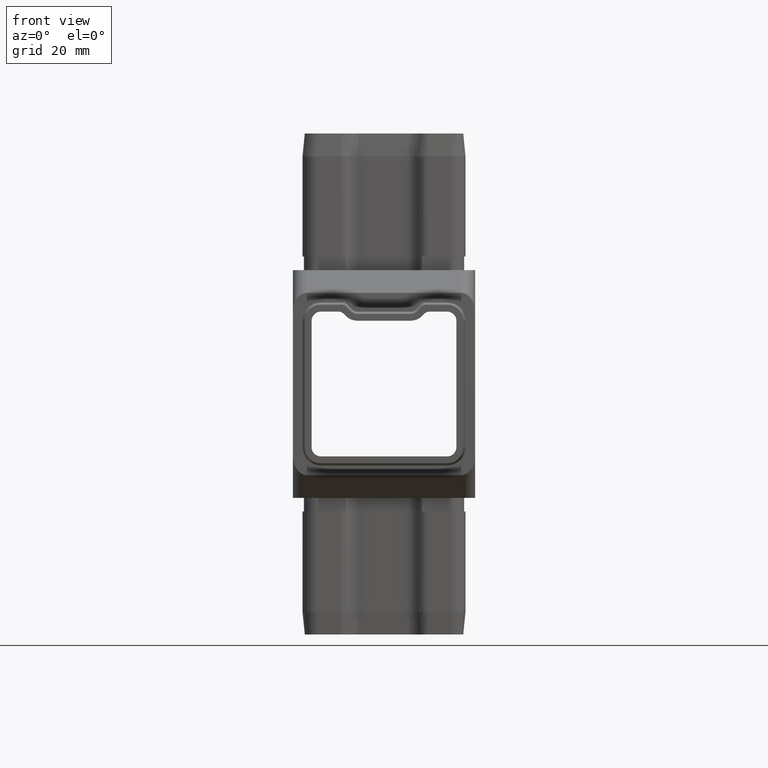
[diagram: clean part render]
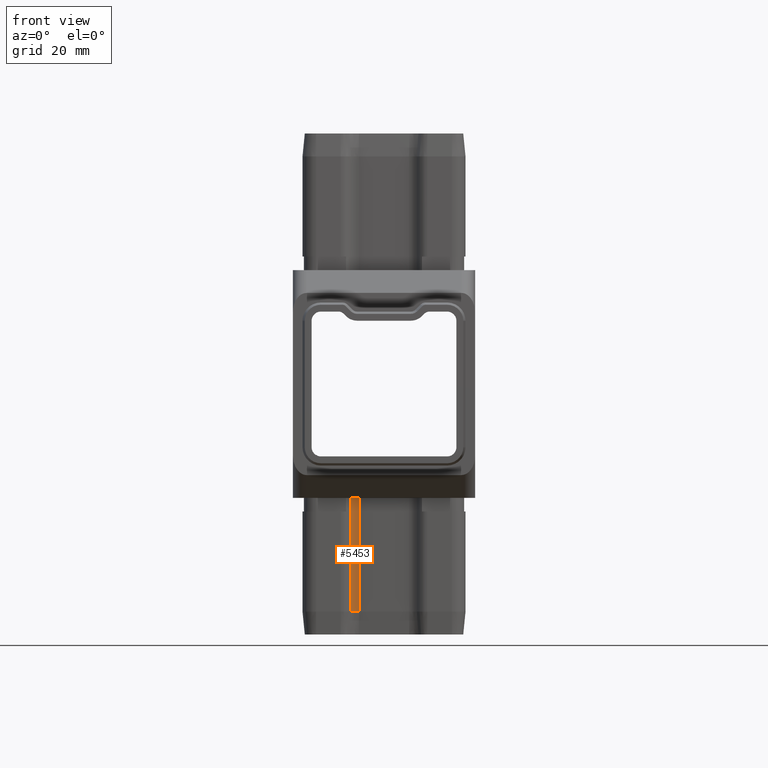
[diagram: same view with one face highlighted and labeled with its STEP entity id]
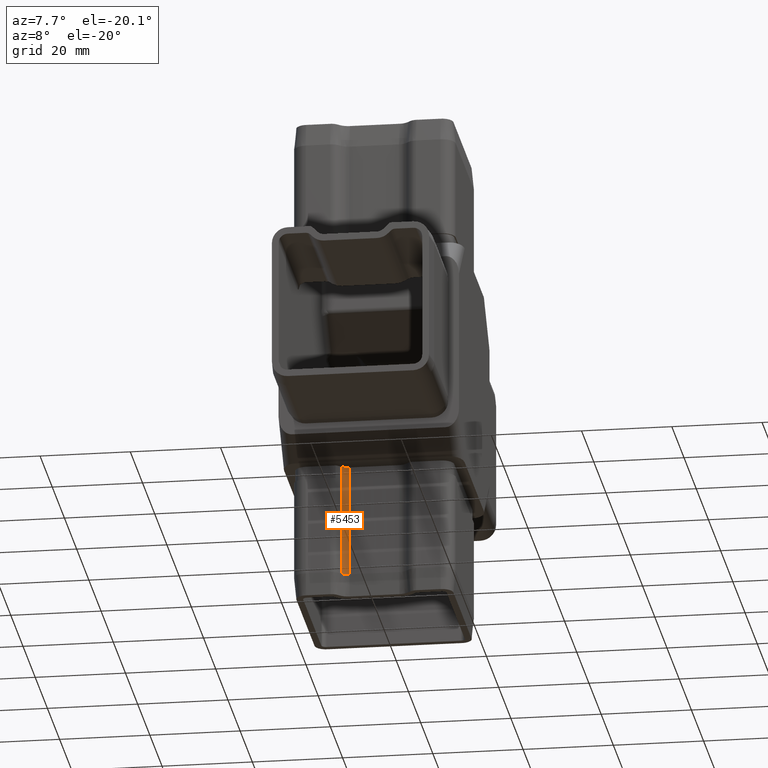
[diagram: same view with one face highlighted and labeled with its STEP entity id]
A machine part, front view. The second image highlights one B-rep face of the part: STEP entity #5453.
A second angle (auxiliary view) of the same face is appended — the face is thin or edge-on in the first view.
In plain terms, the highlighted cylindrical surface (edge-blend (fillet) strip) has radius 2.4591 mm, axis along (-0, -0, 1).
Its self-contained STEP definition (entity closure, byte-faithful):
#747 = DIRECTION ( 'NONE',  ( -0.0000000000000000000, -0.0000000000000000000, 1.000000000000000000 ) ) ;
#801 = CARTESIAN_POINT ( 'NONE',  ( -5.481425013199128700, -15.89999999999998800, -25.00000000000000000 ) ) ;
#1218 = ORIENTED_EDGE ( 'NONE', *, *, #21556, .F. ) ;
#1480 = CARTESIAN_POINT ( 'NONE',  ( -5.481425013199128700, -18.35905754742864800, -55.00000000000000000 ) ) ;
#3161 = DIRECTION ( 'NONE',  ( 0.0000000000000000000, 0.0000000000000000000, -1.000000000000000000 ) ) ;
#5453 = ADVANCED_FACE ( 'NONE', ( #22819 ), #28469, .F. ) ;
#6105 = EDGE_CURVE ( 'NONE', #28245, #23441, #13014, .T. ) ;
#8376 = CARTESIAN_POINT ( 'NONE',  ( -5.481425013199128700, -18.35905754742864800, -25.00000000000000000 ) ) ;
#8856 = CARTESIAN_POINT ( 'NONE',  ( -5.481425013199130400, -15.89999999999998800, -50.00000000000000700 ) ) ;
#12162 = DIRECTION ( 'NONE',  ( 1.000000000000000000, 0.0000000000000000000, 0.0000000000000000000 ) ) ;
#12408 = AXIS2_PLACEMENT_3D ( 'NONE', #26483, #21758, #12162 ) ;
#12956 = DIRECTION ( 'NONE',  ( -0.0000000000000000000, -0.0000000000000000000, 1.000000000000000000 ) ) ;
#13014 = CIRCLE ( 'NONE', #12408, 2.459057547428662000 ) ;
#13552 = EDGE_LOOP ( 'NONE', ( #1218, #30129, #25221, #21251 ) ) ;
#15160 = CARTESIAN_POINT ( 'NONE',  ( -5.481425013199128700, -15.89999999999998800, -55.00000000000000000 ) ) ;
#15458 = AXIS2_PLACEMENT_3D ( 'NONE', #1480, #23511, #16066 ) ;
#16066 = DIRECTION ( 'NONE',  ( 1.000000000000000000, 0.0000000000000000000, 0.0000000000000000000 ) ) ;
#17185 = EDGE_CURVE ( 'NONE', #28245, #18757, #25587, .T. ) ;
#18757 = VERTEX_POINT ( 'NONE', #801 ) ;
#20275 = CARTESIAN_POINT ( 'NONE',  ( -7.220241280313892700, -16.62024128031388400, -55.00000000000000000 ) ) ;
#21251 = ORIENTED_EDGE ( 'NONE', *, *, #29524, .F. ) ;
#21556 = EDGE_CURVE ( 'NONE', #23441, #27524, #22233, .T. ) ;
#21758 = DIRECTION ( 'NONE',  ( -0.0000000000000000000, -0.0000000000000000000, 1.000000000000000000 ) ) ;
#22233 = LINE ( 'NONE', #20275, #23701 ) ;
#22819 = FACE_OUTER_BOUND ( 'NONE', #13552, .T. ) ;
#23441 = VERTEX_POINT ( 'NONE', #29187 ) ;
#23511 = DIRECTION ( 'NONE',  ( -0.0000000000000000000, -0.0000000000000000000, 1.000000000000000000 ) ) ;
#23701 = VECTOR ( 'NONE', #747, 1000.000000000000000 ) ;
#24886 = DIRECTION ( 'NONE',  ( 1.000000000000000000, 0.0000000000000000000, 0.0000000000000000000 ) ) ;
#25221 = ORIENTED_EDGE ( 'NONE', *, *, #17185, .T. ) ;
#25587 = LINE ( 'NONE', #15160, #25991 ) ;
#25766 = AXIS2_PLACEMENT_3D ( 'NONE', #8376, #3161, #24886 ) ;
#25991 = VECTOR ( 'NONE', #12956, 1000.000000000000000 ) ;
#26483 = CARTESIAN_POINT ( 'NONE',  ( -5.481425013199128700, -18.35905754742864800, -50.00000000000000700 ) ) ;
#27524 = VERTEX_POINT ( 'NONE', #29021 ) ;
#28245 = VERTEX_POINT ( 'NONE', #8856 ) ;
#28469 = CYLINDRICAL_SURFACE ( 'NONE', #15458, 2.459057547428657600 ) ;
#28818 = CIRCLE ( 'NONE', #25766, 2.459057547428657600 ) ;
#29021 = CARTESIAN_POINT ( 'NONE',  ( -7.220241280313892700, -16.62024128031388400, -25.00000000000000000 ) ) ;
#29187 = CARTESIAN_POINT ( 'NONE',  ( -7.220241280313892700, -16.62024128031388400, -50.00000000000000700 ) ) ;
#29524 = EDGE_CURVE ( 'NONE', #27524, #18757, #28818, .T. ) ;
#30129 = ORIENTED_EDGE ( 'NONE', *, *, #6105, .F. ) ;